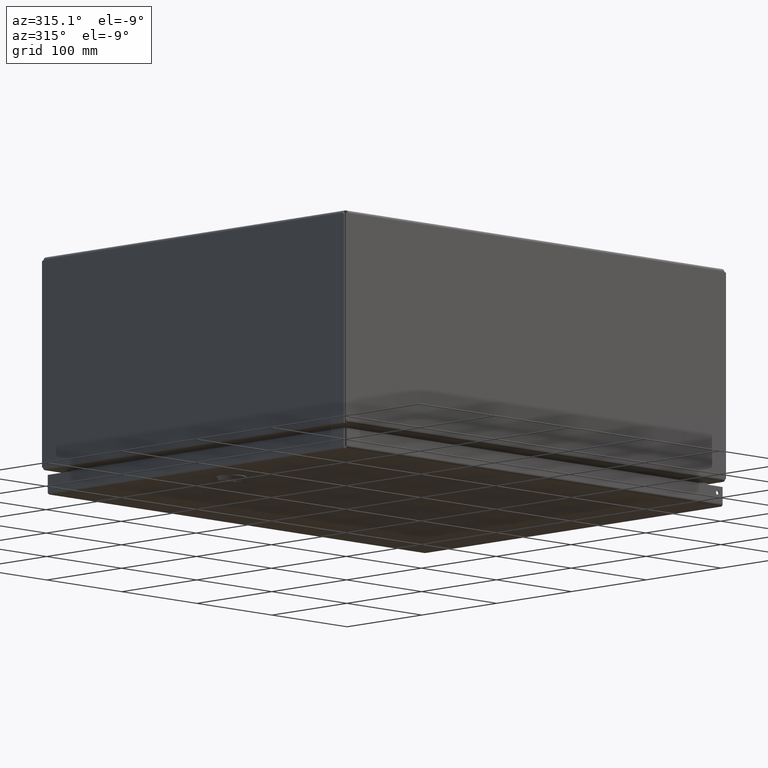
[diagram: clean part render]
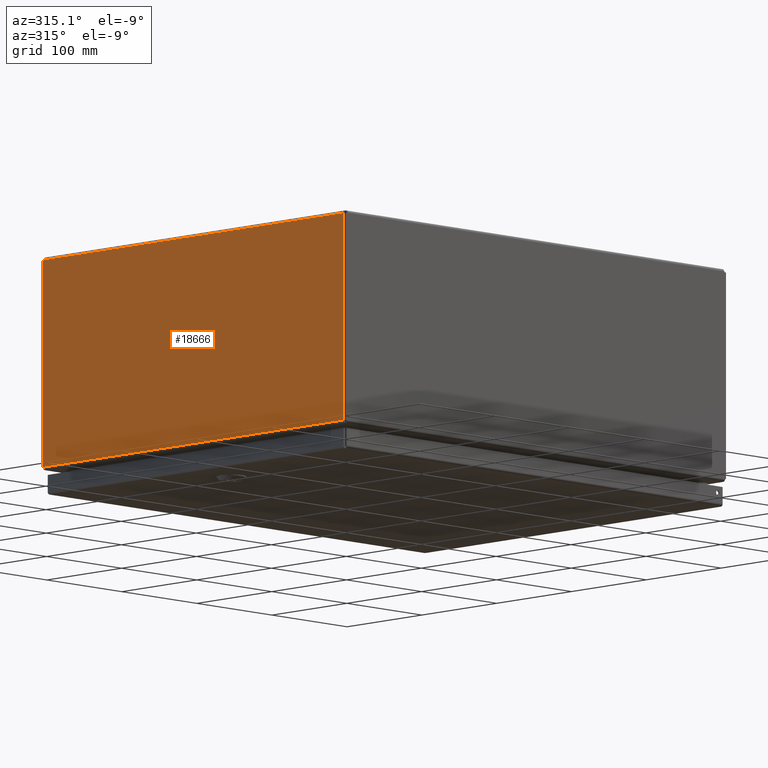
[diagram: same view with one face highlighted and labeled with its STEP entity id]
A machine part, auxiliary view. The second image highlights one B-rep face of the part: STEP entity #18666.
In plain terms, the highlighted planar face has unit normal (1, 0, -0).
Its self-contained STEP definition (entity closure, byte-faithful):
#17474=CARTESIAN_POINT('',(20.000000000000473,15.914951456544001,7.894749999999990));
#17475=VERTEX_POINT('',#17474);
#17504=CARTESIAN_POINT('',(20.000000000000497,0.085048543456042,7.894749999999998));
#17505=VERTEX_POINT('',#17504);
#17519=CARTESIAN_POINT('',(20.000000000000480,15.914951456544003,7.894749999999990));
#17520=DIRECTION('',(0.0,-1.0,0.0));
#17521=VECTOR('',#17520,15.829902913087960);
#17522=LINE('',#17519,#17521);
#17523=EDGE_CURVE('',#17475,#17505,#17522,.T.);
#18181=CARTESIAN_POINT('',(20.000000000000487,0.079999999999994,7.894749999999999));
#18182=VERTEX_POINT('',#18181);
#18189=CARTESIAN_POINT('',(20.000000000000490,0.085048543456043,7.894749999999998));
#18190=DIRECTION('',(0.0,-1.0,0.0));
#18191=VECTOR('',#18190,0.005048543456049);
#18192=LINE('',#18189,#18191);
#18193=EDGE_CURVE('',#17505,#18182,#18192,.T.);
#18359=CARTESIAN_POINT('',(20.000000000000473,15.920000000000003,7.894749999999991));
#18360=VERTEX_POINT('',#18359);
#18361=CARTESIAN_POINT('',(20.000000000000480,15.920000000000003,7.894749999999990));
#18362=DIRECTION('',(0.0,-1.0,0.0));
#18363=VECTOR('',#18362,0.005048543456001);
#18364=LINE('',#18361,#18363);
#18365=EDGE_CURVE('',#18360,#17475,#18364,.T.);
#18390=CARTESIAN_POINT('',(19.999999999999996,15.920000000000009,0.129782883345307));
#18391=VERTEX_POINT('',#18390);
#18392=CARTESIAN_POINT('',(20.000000000000082,15.920000000000009,7.894749999999990));
#18393=DIRECTION('',(0.0,0.0,-1.0));
#18394=VECTOR('',#18393,7.764967116654683);
#18395=LINE('',#18392,#18394);
#18396=EDGE_CURVE('',#18360,#18391,#18395,.T.);
#18554=CARTESIAN_POINT('',(20.000000000000004,0.117233160675635,0.105249999999987));
#18555=VERTEX_POINT('',#18554);
#18562=CARTESIAN_POINT('',(20.0,0.079999999999996,0.129782883345310));
#18563=VERTEX_POINT('',#18562);
#18564=CARTESIAN_POINT('',(20.0,0.062108078884575,0.062108078884570));
#18565=DIRECTION('',(-1.0,0.0,0.0));
#18566=DIRECTION('',(0.0,0.0,1.0));
#18567=AXIS2_PLACEMENT_3D('',#18564,#18565,#18566);
#18568=CIRCLE('',#18567,0.070000000000000);
#18569=EDGE_CURVE('',#18563,#18555,#18568,.T.);
#18633=CARTESIAN_POINT('',(20.000000000000245,7.999999999999999,4.009483078884574));
#18634=DIRECTION('',(-1.0,0.0,0.0));
#18635=DIRECTION('',(0.0,0.0,1.0));
#18636=AXIS2_PLACEMENT_3D('',#18633,#18634,#18635);
#18637=PLANE('',#18636);
#18638=ORIENTED_EDGE('',*,*,#18365,.T.);
#18639=ORIENTED_EDGE('',*,*,#17523,.T.);
#18640=ORIENTED_EDGE('',*,*,#18193,.T.);
#18641=CARTESIAN_POINT('',(20.000000000000007,0.079999999999994,0.129782883345310));
#18642=DIRECTION('',(0.0,0.0,1.0));
#18643=VECTOR('',#18642,7.764967116654689);
#18644=LINE('',#18641,#18643);
#18645=EDGE_CURVE('',#18563,#18182,#18644,.T.);
#18646=ORIENTED_EDGE('',*,*,#18645,.F.);
#18647=ORIENTED_EDGE('',*,*,#18569,.T.);
#18648=CARTESIAN_POINT('',(20.0,15.882766839324370,0.105249999999990));
#18649=VERTEX_POINT('',#18648);
#18650=CARTESIAN_POINT('',(20.000000000000007,0.117233160675634,0.105249999999990));
#18651=DIRECTION('',(0.0,1.0,0.0));
#18652=VECTOR('',#18651,15.765533678648737);
#18653=LINE('',#18650,#18652);
#18654=EDGE_CURVE('',#18555,#18649,#18653,.T.);
#18655=ORIENTED_EDGE('',*,*,#18654,.T.);
#18656=CARTESIAN_POINT('',(19.999999999999996,15.937891921115428,0.062108078884567));
#18657=DIRECTION('',(-1.0,0.0,0.0));
#18658=DIRECTION('',(0.0,0.0,1.0));
#18659=AXIS2_PLACEMENT_3D('',#18656,#18657,#18658);
#18660=CIRCLE('',#18659,0.070000000000000);
#18661=EDGE_CURVE('',#18649,#18391,#18660,.T.);
#18662=ORIENTED_EDGE('',*,*,#18661,.T.);
#18663=ORIENTED_EDGE('',*,*,#18396,.F.);
#18664=EDGE_LOOP('',(#18638,#18639,#18640,#18646,#18647,#18655,#18662,#18663));
#18665=FACE_OUTER_BOUND('',#18664,.T.);
#18666=ADVANCED_FACE('',(#18665),#18637,.F.);